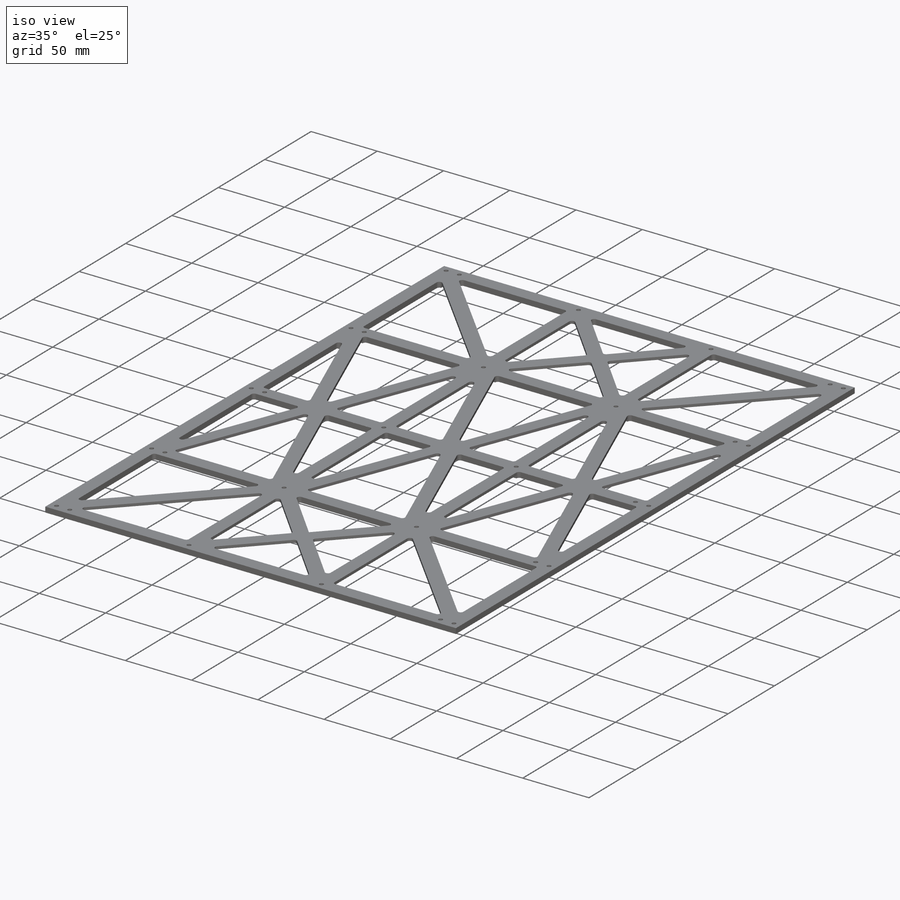
[diagram: iso view]
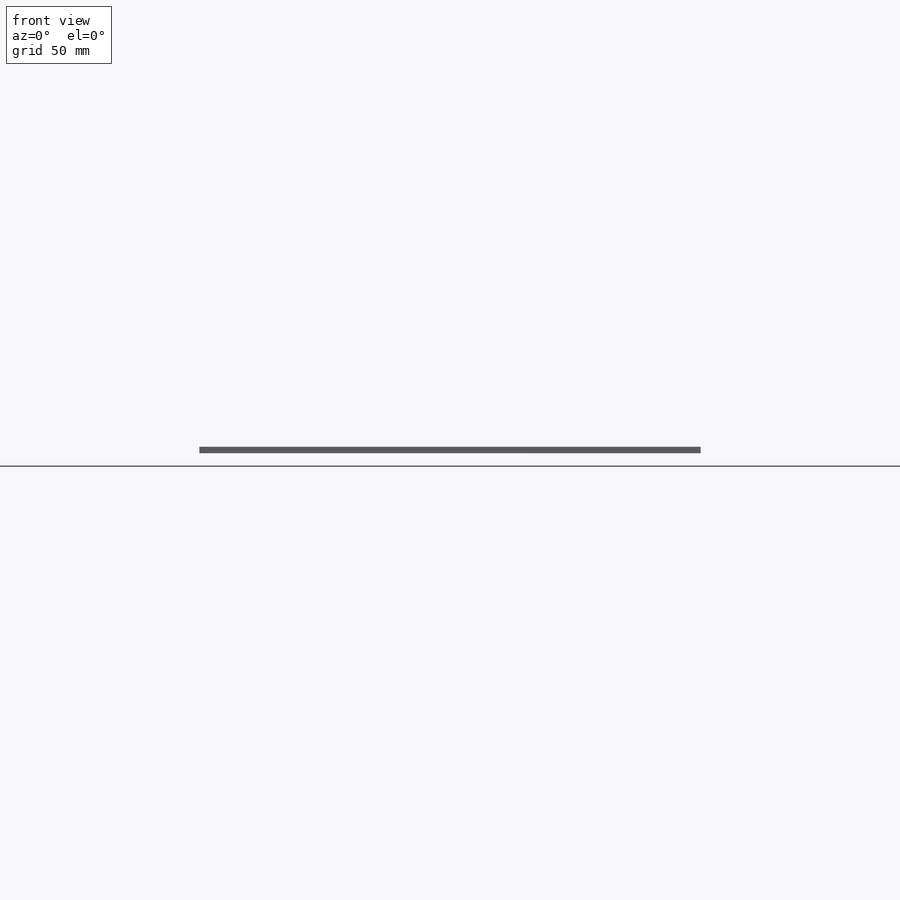
[diagram: front view]
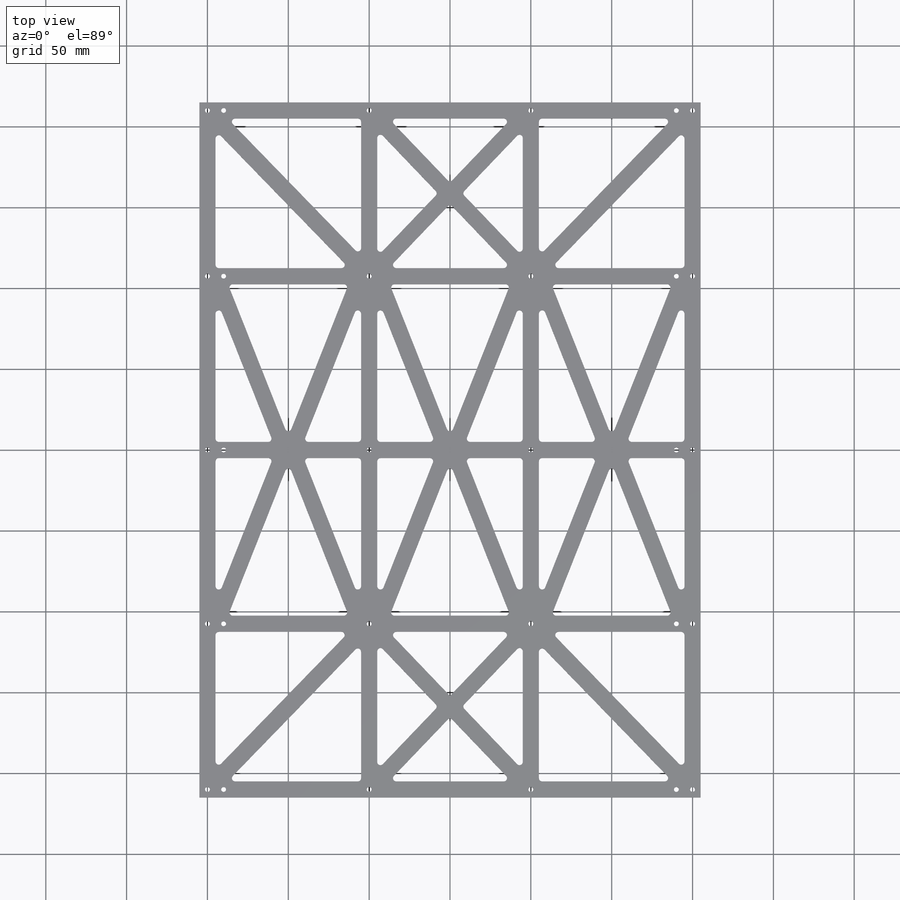
[diagram: top view]
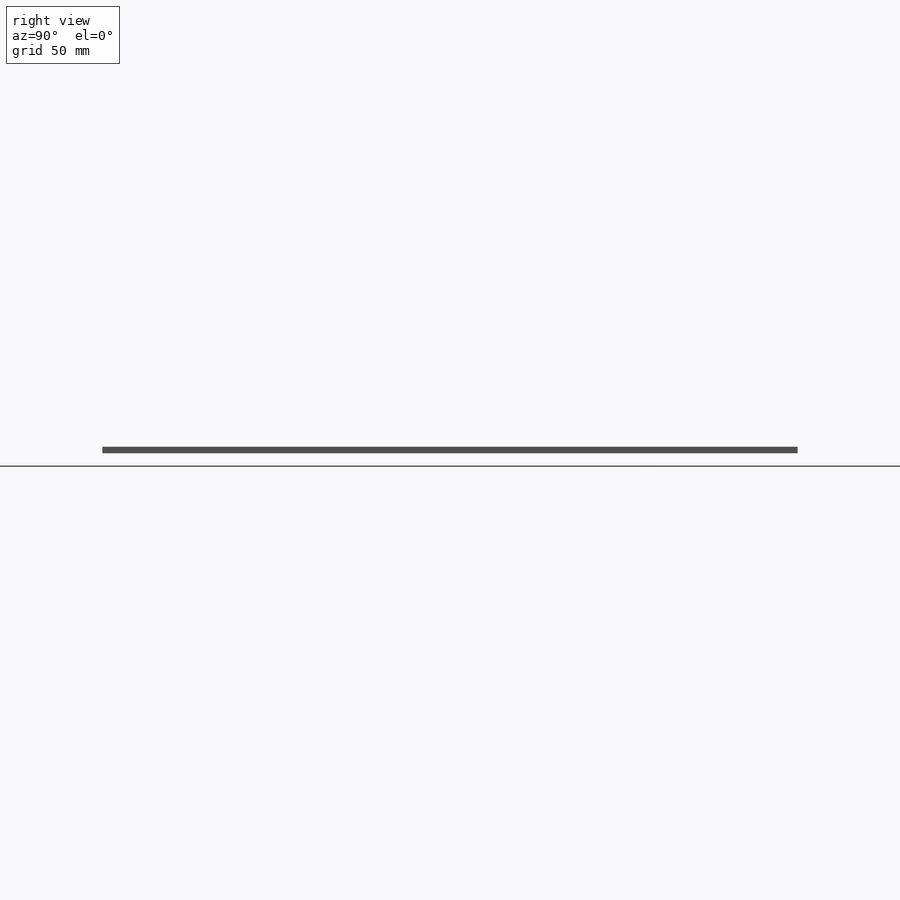
[diagram: right view]
SOLIDWORKS PART (.sldprt)
format: sldprt  version: not decoded by parser v0  size: 897,024 bytes
history: native  units: mm
features: sketch x6, extrude x2, cut_extrude x2, material x1, fillet x1, hole x1 (+12 scaffold rows collapsed)
feature tree (25):
  scaffold x12  (default folders/planes/origin — collapsed)
  material  "7050-T73510"
  sketch  "Sketch1"  dims[D1=310.0mm D2=430.0mm]
  extrude  "Boss-Extrude1"  Depth=4mm
  sketch  "Sketch2"  dims[c1.D1=20.0mm c1.D2=10.0mm c1.D3=10.0mm c1.D4=10.0mm c1.D5=10.0mm c1.D6=5.0mm c2.D1=107.5mm c2.D2=105.0mm c2.D3=105.0mm c2.D4=5.0mm c2.D5=5.0mm c2.D6=5.0mm c2.D7=10.0mm c2.D8=10.0mm c2.D9=10.0mm c2.D10=15.0mm c2.D11=10.0mm c2.D12=5.0mm c2.D13=10.0mm c2.D14=5.0mm c2.D15=5.0mm c2.D16=10.0mm c2.D17=15.0mm c2.D18=5.0mm c2.D19=5.0mm c2.D20=5.0mm c2.D21=~71.939725mm c3.D21=~177.438655deg c4.D21=5.0mm c4.D22=~42.87975mm c4.D20=5.0mm c5.D21=5.0mm c5.D22=15.0mm c5.D23=10.0mm c5.D24=10.0mm c5.D25=5.0mm c5.D18=~8.927777mm c6.D18=45.0deg c6.D14=~6.429088mm c7.D14=45.0deg c7.D13=~11.910876mm c8.D13=45.0deg c8.D19=5.0mm c8.D20=~9.34163mm c8.D8=~11.893491mm c9.D8=45.0deg c9.D9=~7.797657mm c10.D9=45.0deg c10.D20=~17.713686mm c11.D20=45.0deg c11.D21=~4.61858mm c12.D21=45.0deg c12.D26=10.0mm c12.D27=10.0mm c12.D28=10.0mm c12.D29=10.0mm c12.D30=~7.511232mm c12.D10=~6.796343mm c13.D10=45.0deg c13.D30=~118.323385mm c14.D30=~179.817999deg c15.D30=5.0mm c15.D31=15.0mm]
  cut_extrude  "Cut-Extrude1"  [1 undecoded]
  sketch  "Sketch3"  dims[D1=10.0mm]
  extrude  "Boss-Extrude2"  Depth=4mm
  sketch  "Sketch4"  dims[c1.D1=2.0mm c1.D2=2.0mm c1.D3=2.0mm c1.D4=2.0mm c1.D5=~76.12903mm c1.D6=~257.77532mm c2.D5=2.0mm c2.D6=2.0mm c2.D7=2.0mm c2.D8=~0.619927mm c3.D5=2.0mm c3.D7=2.0mm]
  cut_extrude  "Cut-Extrude2"  Depth=2mm
  fillet  "Fillet1"  Radius=2mm
  hole  "Ø3.0mm Dowel Hole1"  Diameter=3mm Depth=17.29mm
  sketch  "Sketch6"  dims[D1=5.0mm D2=5.0mm D3=5.0mm D4=5.0mm D5=5.0mm D6=5.0mm D7=5.0mm D8=5.0mm D9=5.0mm D10=10.0mm D11=10.0mm]
  sketch  "Sketch5"  dims[hole-wizard template sketch: 50 standard entries collapsed; hole parameters above]
decode coverage: 11 of 12 modeling features carry decoded parameters
note: ~ marks probable driven/reference dimensions
note: 1 parameter value undecoded
note: suppression state not decoded; provenance and decode notes live in map.json
